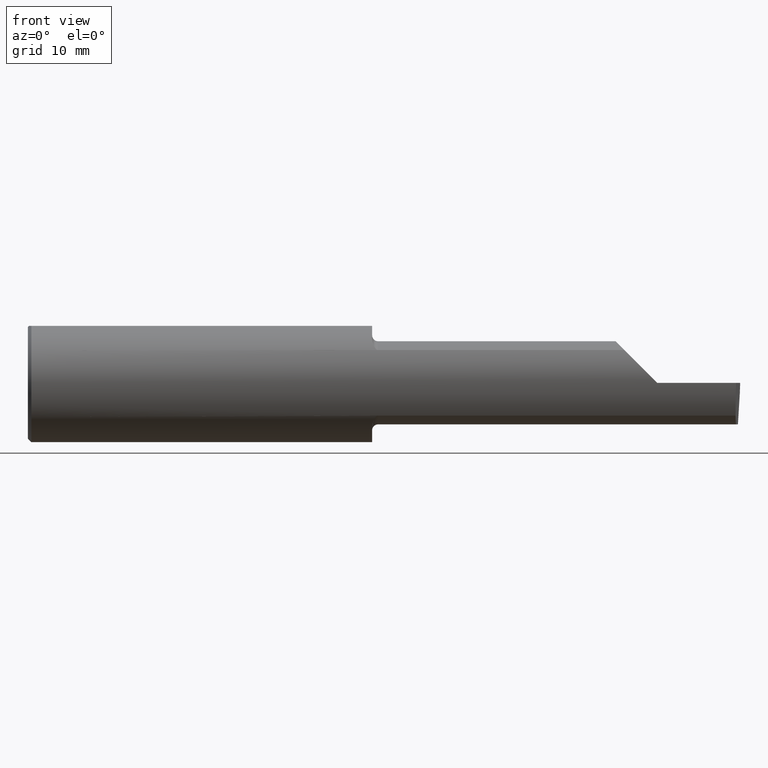
[diagram: clean part render]
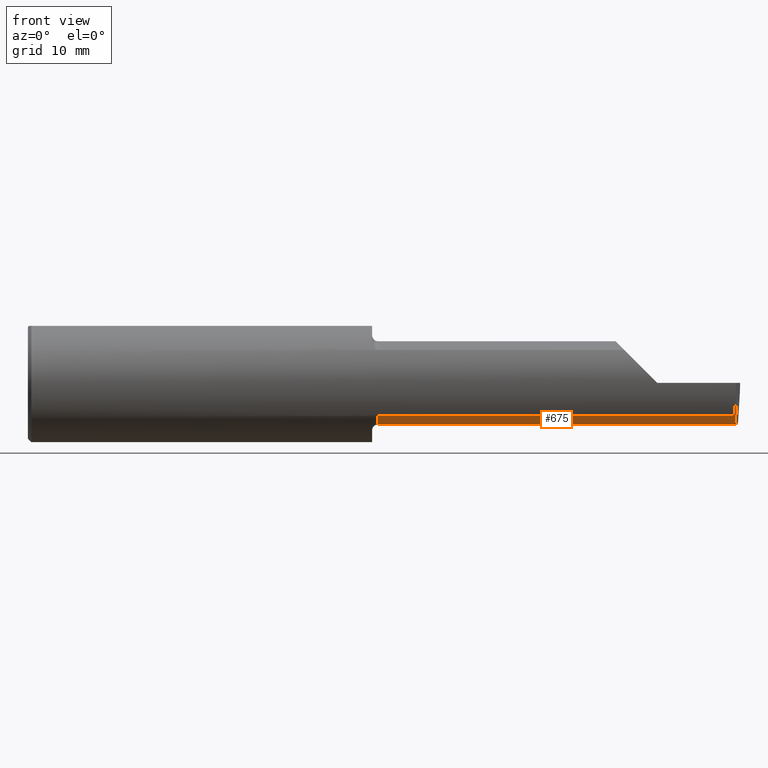
[diagram: same view with one face highlighted and labeled with its STEP entity id]
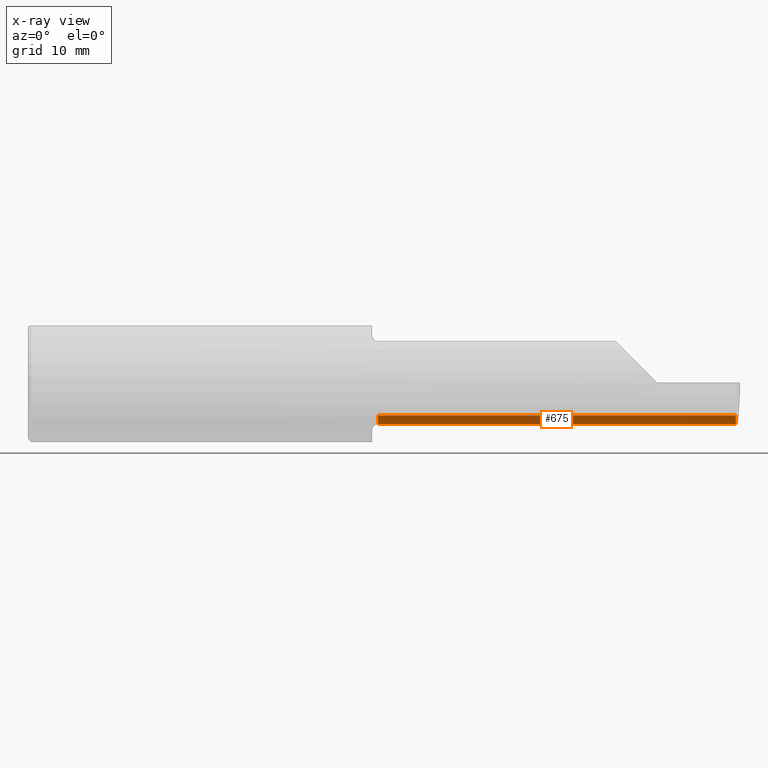
[diagram: x-ray of the same camera — body ghosted, the highlighted face saturated]
A machine part, front view. The second image highlights one B-rep face of the part: STEP entity #675.
The next image is the same camera in x-ray: the body ghosted, the highlighted face saturated — about 0% of this face is hidden behind the body in this view.
In plain terms, the highlighted cylindrical surface (partial cylindrical patch) has radius 4.445 mm, axis along (-1, -0, -0).
Its self-contained STEP definition (entity closure, byte-faithful):
#13 = VERTEX_POINT ( 'NONE', #46 ) ;
#46 = CARTESIAN_POINT ( 'NONE',  ( 1.474999999999999867, -0.2080850024789291375, -0.1382955322609665805 ) ) ;
#61 = DIRECTION ( 'NONE',  ( -1.000000000000000000, -0.000000000000000000, -0.000000000000000000 ) ) ;
#67 = VERTEX_POINT ( 'NONE', #413 ) ;
#82 = ORIENTED_EDGE ( 'NONE', *, *, #534, .T. ) ;
#87 = ORIENTED_EDGE ( 'NONE', *, *, #486, .F. ) ;
#90 = EDGE_CURVE ( 'NONE', #467, #13, #274, .T. ) ;
#180 = DIRECTION ( 'NONE',  ( -1.000000000000000000, -0.000000000000000000, -0.000000000000000000 ) ) ;
#189 = DIRECTION ( 'NONE',  ( -1.000000000000000000, -0.000000000000000000, -0.000000000000000000 ) ) ;
#190 = LINE ( 'NONE', #672, #333 ) ;
#209 = CARTESIAN_POINT ( 'NONE',  ( 1.450000000000000178, -0.1008499999999999674, 0.000000000000000000 ) ) ;
#213 = CARTESIAN_POINT ( 'NONE',  ( 2.980479240051444378, -0.2080850024789291652, -0.1382955322609665250 ) ) ;
#230 = VECTOR ( 'NONE', #61, 39.37007874015748143 ) ;
#238 = EDGE_CURVE ( 'NONE', #67, #467, #190, .T. ) ;
#274 = CIRCLE ( 'NONE', #639, 0.1749999999999999889 ) ;
#323 =( BOUNDED_CURVE ( )  B_SPLINE_CURVE ( 3, ( #702, #641, #758, #415 ),
 .UNSPECIFIED., .F., .T. ) 
 B_SPLINE_CURVE_WITH_KNOTS ( ( 4, 4 ),
 ( 0.2675252011803428975, 0.9270880441442503894 ),
 .UNSPECIFIED. ) 
 CURVE ( )  GEOMETRIC_REPRESENTATION_ITEM ( )  RATIONAL_B_SPLINE_CURVE ( ( 1.000000000000000000, 0.9640754331822828371, 0.9640754331822828371, 1.000000000000000000 ) ) 
 REPRESENTATION_ITEM ( '' )  );
#330 = DIRECTION ( 'NONE',  ( -1.000000000000000000, -0.000000000000000000, -0.000000000000000000 ) ) ;
#333 = VECTOR ( 'NONE', #330, 39.37007874015748143 ) ;
#368 = VECTOR ( 'NONE', #491, 39.37007874015748143 ) ;
#388 = DIRECTION ( 'NONE',  ( 0.000000000000000000, 0.000000000000000000, 1.000000000000000000 ) ) ;
#413 = CARTESIAN_POINT ( 'NONE',  ( 2.760029432995153353, -0.1008500000000000091, -0.1749999999999999889 ) ) ;
#415 = CARTESIAN_POINT ( 'NONE',  ( 2.983262242683407006, -0.1008499999999999674, -0.1749999999999999889 ) ) ;
#463 = VERTEX_POINT ( 'NONE', #525 ) ;
#467 = VERTEX_POINT ( 'NONE', #770 ) ;
#486 = EDGE_CURVE ( 'NONE', #514, #463, #323, .T. ) ;
#491 = DIRECTION ( 'NONE',  ( -1.000000000000000000, -0.000000000000000000, -0.000000000000000000 ) ) ;
#508 = FACE_OUTER_BOUND ( 'NONE', #624, .T. ) ;
#514 = VERTEX_POINT ( 'NONE', #213 ) ;
#525 = CARTESIAN_POINT ( 'NONE',  ( 2.983262242683407006, -0.1008499999999999674, -0.1749999999999999889 ) ) ;
#534 = EDGE_CURVE ( 'NONE', #514, #13, #665, .T. ) ;
#604 = AXIS2_PLACEMENT_3D ( 'NONE', #209, #189, #388 ) ;
#624 = EDGE_LOOP ( 'NONE', ( #699, #742, #87, #82, #719 ) ) ;
#627 = CARTESIAN_POINT ( 'NONE',  ( 3.000000000000000444, -0.1008499999999999813, -0.1749999999999999889 ) ) ;
#639 = AXIS2_PLACEMENT_3D ( 'NONE', #653, #180, #724 ) ;
#641 = CARTESIAN_POINT ( 'NONE',  ( 2.980931506555613453, -0.1771157075472509779, -0.1623092683844330475 ) ) ;
#653 = CARTESIAN_POINT ( 'NONE',  ( 1.474999999999999867, -0.1008499999999999674, 0.000000000000000000 ) ) ;
#665 = LINE ( 'NONE', #781, #368 ) ;
#671 = CYLINDRICAL_SURFACE ( 'NONE', #604, 0.1749999999999999889 ) ;
#672 = CARTESIAN_POINT ( 'NONE',  ( 1.450000000000000178, -0.1008499999999999536, -0.1749999999999999889 ) ) ;
#675 = ADVANCED_FACE ( 'NONE', ( #508 ), #671, .T. ) ;
#699 = ORIENTED_EDGE ( 'NONE', *, *, #238, .F. ) ;
#702 = CARTESIAN_POINT ( 'NONE',  ( 2.980479240051444378, -0.2080850024789291652, -0.1382955322609665250 ) ) ;
#719 = ORIENTED_EDGE ( 'NONE', *, *, #90, .F. ) ;
#724 = DIRECTION ( 'NONE',  ( 0.000000000000000000, 0.000000000000000000, 1.000000000000000000 ) ) ;
#727 = EDGE_CURVE ( 'NONE', #463, #67, #734, .T. ) ;
#734 = LINE ( 'NONE', #627, #230 ) ;
#742 = ORIENTED_EDGE ( 'NONE', *, *, #727, .F. ) ;
#758 = CARTESIAN_POINT ( 'NONE',  ( 2.981893741990786495, -0.1400387324517231025, -0.1750000000000000167 ) ) ;
#770 = CARTESIAN_POINT ( 'NONE',  ( 1.474999999999999867, -0.1008499999999999536, -0.1749999999999999889 ) ) ;
#781 = CARTESIAN_POINT ( 'NONE',  ( 2.112000000000000099, -0.2080850024789291652, -0.1382955322609665250 ) ) ;